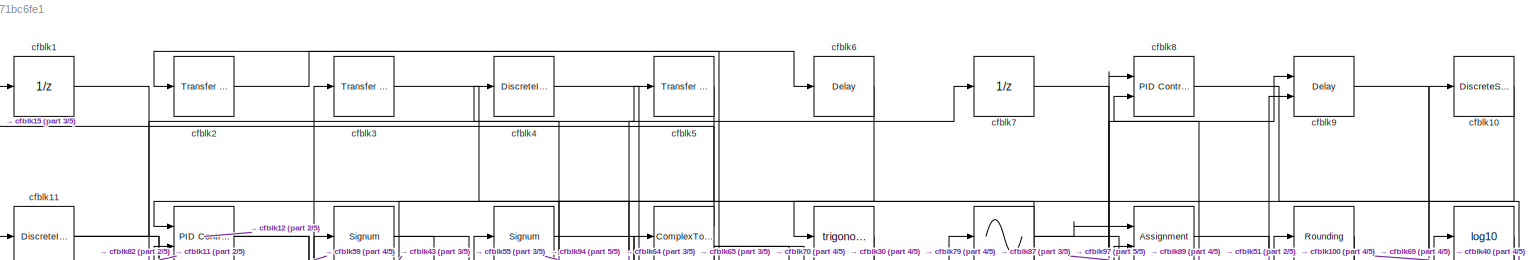
[diagram: root canvas - part 1/5, full width, top band]
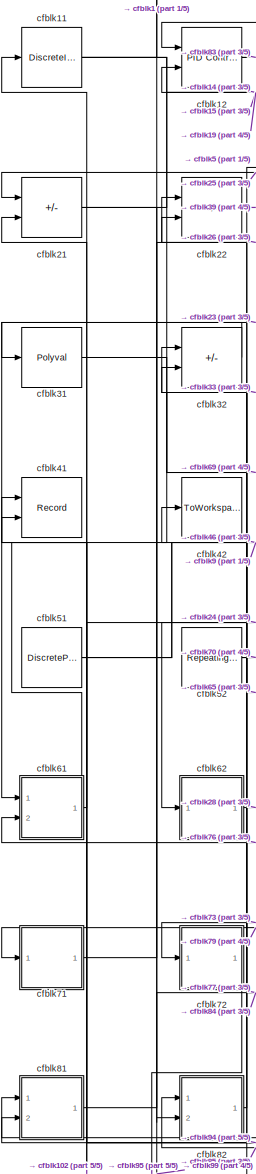
[diagram: root canvas - part 2/5, middle left region]
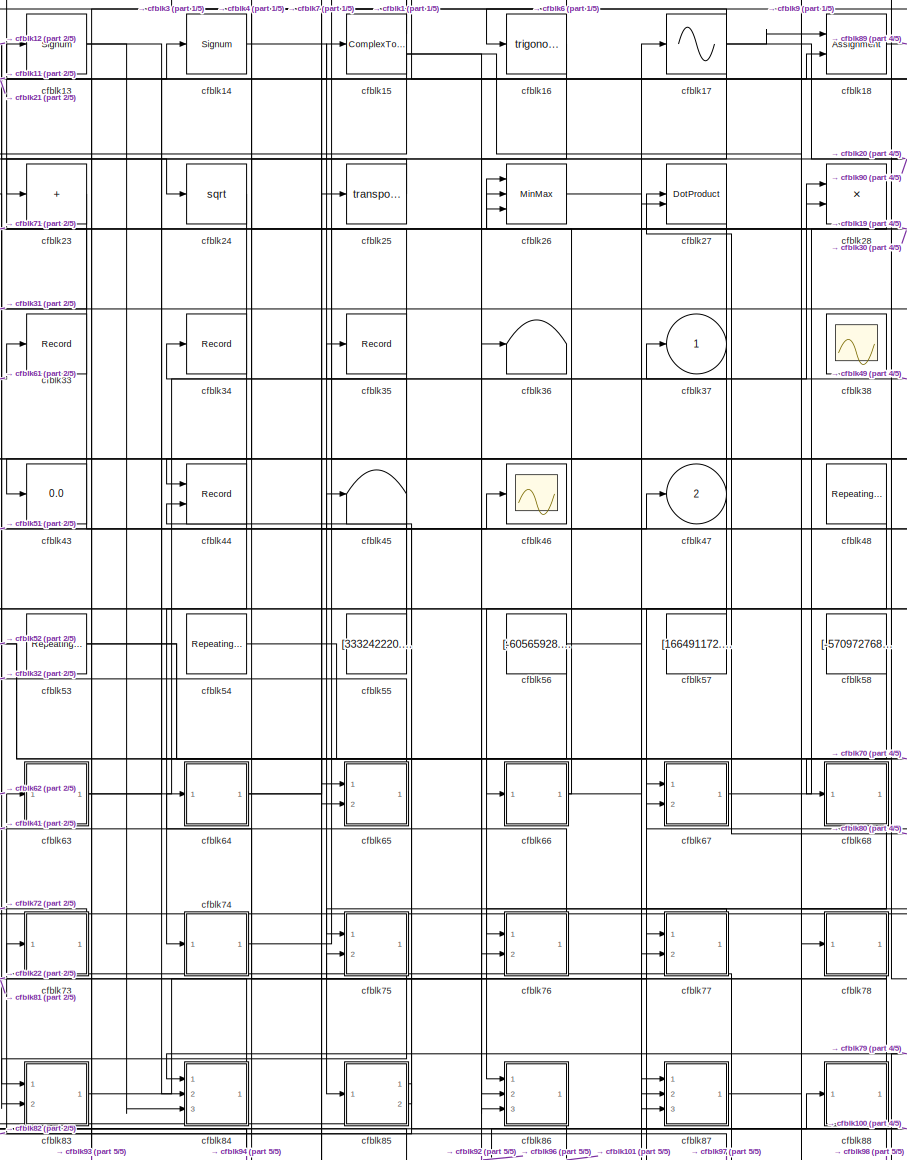
[diagram: root canvas - part 3/5, central region]
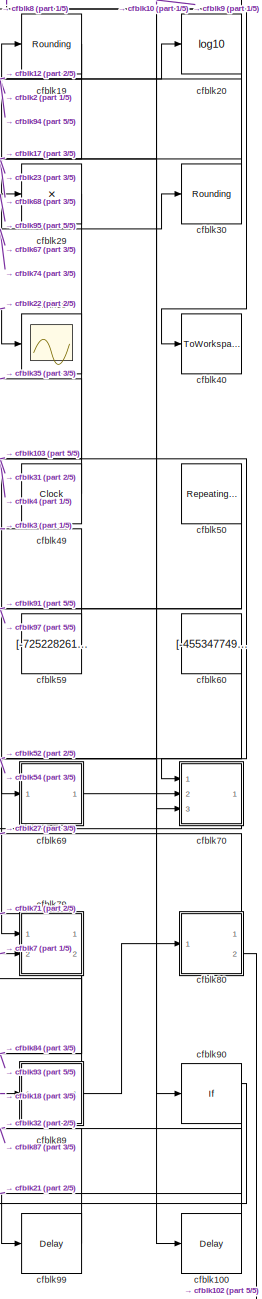
[diagram: root canvas - part 4/5, right side, full height]
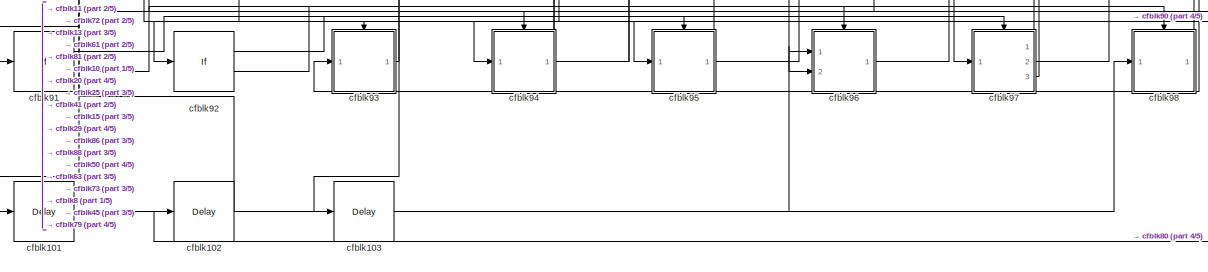
[diagram: root canvas - part 5/5, full width, bottom band]
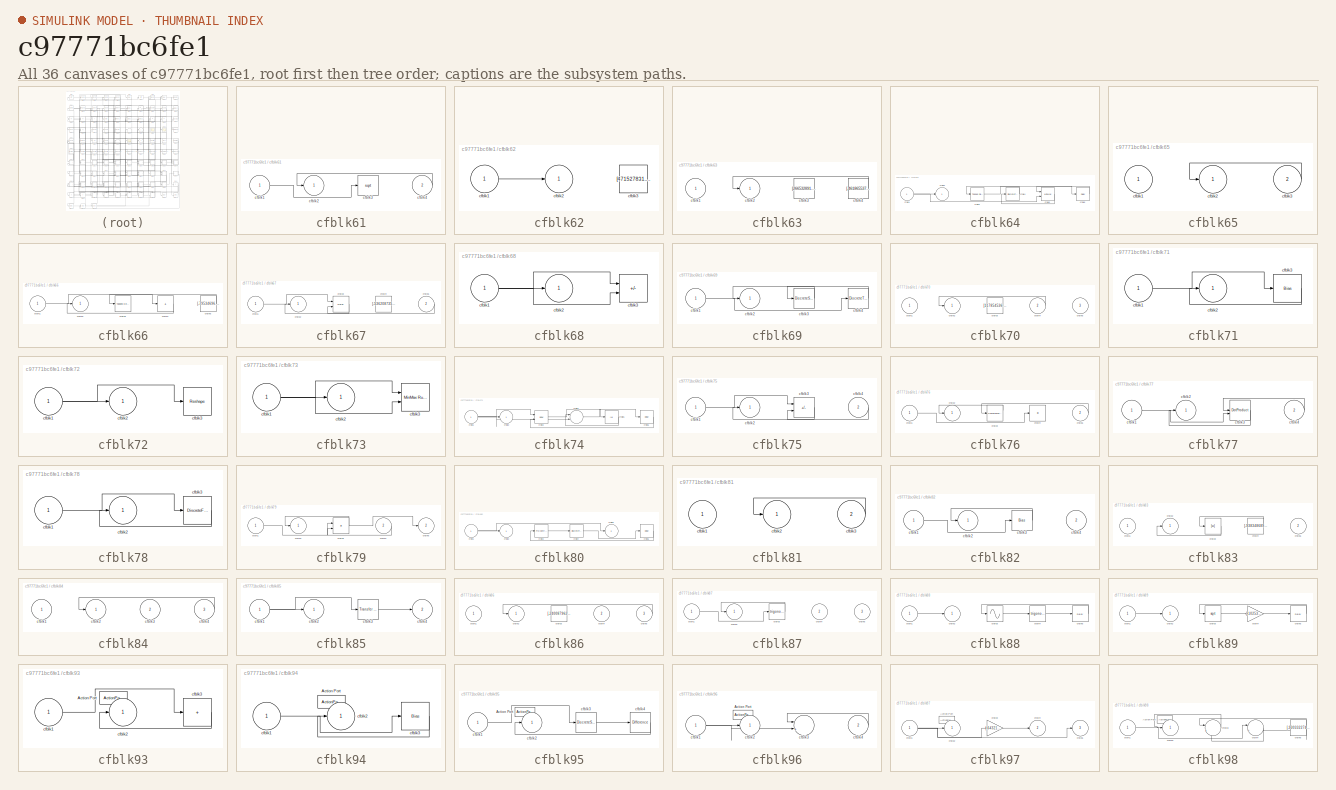
[diagram: thumbnail index - all 36 canvases of the model, root first then tree order]
MODEL slx_c97771bc6fe1
KIND model
CONFIG AbsTol = auto
CONFIG EnableMultiTasking = off
CONFIG FixedStep = auto
CONFIG MaxStep = auto
CONFIG MinStep = auto
CONFIG RelTol = 1e-3
CONFIG SampleTimeConstraint = Unconstrained
CONFIG SolverName = VariableStepAuto
CONFIG StartTime = 0.0
CONFIG StopTime = 10.0
BLOCK [UnitDelay] cfblk1
  HasFrameUpgradeWarning = on
BLOCK [DiscreteStateSpace] cfblk10
BLOCK [Delay] cfblk100
  InputPortMap = u0
  Ports = [1, 1]
  SampleTime = 1
BLOCK [Delay] cfblk101
  InputPortMap = u0
  Ports = [1, 1]
  SampleTime = 1
BLOCK [Delay] cfblk102
  InputPortMap = u0
  Ports = [1, 1]
  SampleTime = 1
BLOCK [Delay] cfblk103
  InputPortMap = u0
  Ports = [1, 1]
  SampleTime = 1
BLOCK [DiscreteIntegrator] cfblk11
  ICPrevOutput = DiscIntNeverNeededParam
  ICPrevScaledInput = DiscIntNeverNeededParam
  InitialConditionSetting = Auto
  Ports = [1, 1]
BLOCK [Reference] cfblk12  REF=slpidlib/PID Controller (2DOF)
  Ports = [2, 1]
  SourceBlock = slpidlib/PID Controller (2DOF)
  SourceProductBaseCode = SL
  SourceType = PID 2dof
BLOCK [Signum] cfblk13
BLOCK [Signum] cfblk14
BLOCK [ComplexToMagnitudeAngle] cfblk15
  Ports = [1, 2]
BLOCK [Trigonometry] cfblk16
  Ports = [1, 1]
BLOCK [Sin] cfblk17
  Ports = [1, 1]
  SampleTime = 0
  TimeSource = Use external signal
BLOCK [Assignment] cfblk18
  DiagnosticForDimensions = Warning
  IndexOptions = Index vector (dialog)
  Indices = 1
  OutputSizes = 1
  Ports = [2, 1]
BLOCK [Rounding] cfblk19
BLOCK [Reference] cfblk2  REF=simulink/Discrete/Transfer Fcn
Lead or Lag
  Ports = [1, 1]
  SourceBlock = simulink/Discrete/Transfer Fcn\nLead or Lag
  SourceProductBaseCode = SL
  SourceType = Lead or Lag Compensator
BLOCK [Math] cfblk20
  Operator = log10
  Ports = [1, 1]
BLOCK [Sum] cfblk21
  IconShape = rectangular
  Inputs = +-
  Ports = [2, 1]
BLOCK [Sum] cfblk22
  IconShape = rectangular
  Inputs = +-
  Ports = [2, 1]
BLOCK [Sum] cfblk23
  IconShape = rectangular
  Inputs = +
  Ports = [1, 1]
BLOCK [Sqrt] cfblk24
BLOCK [Math] cfblk25
  Operator = transpose
  Ports = [1, 1]
BLOCK [MinMax] cfblk26
  Function = max
  Inputs = 3
  Ports = [3, 1]
BLOCK [DotProduct] cfblk27
  OutDataTypeStr = Inherit: Inherit via internal rule
BLOCK [Product] cfblk28
  Ports = [2, 1]
BLOCK [Product] cfblk29
  Inputs = *
  Ports = [1, 1]
BLOCK [Reference] cfblk3  REF=simulink/Discrete/Transfer Fcn
First Order
  Ports = [1, 1]
  SourceBlock = simulink/Discrete/Transfer Fcn\nFirst Order
  SourceProductBaseCode = SL
  SourceType = First Order Transfer Fcn
BLOCK [Rounding] cfblk30
BLOCK [Polyval] cfblk31
  Coefs = [ +2.081618890e-019, -1.441693666e-014, +4.719686976e-010, -8.536869453e-006, +1.621573104e-001, -8.087801117e+001 ]
BLOCK [Sum] cfblk32
  IconShape = rectangular
  Inputs = +-
  Ports = [2, 1]
BLOCK [Record] cfblk33
  FileSettingsInternal = {"entries":[{"content":{"excelSettings":{"content":{},"type":"Streamout.ExcelSettings"}},"type":"Streamout.FileSettingStorage","uuid":"3282f54a-cc87-4849-ac33-639abf907f72"}],"packageUris":["http://schema.mathworks.com/mf0/streamout_blocks/R2020a"],"version":"1.0"}
  Ports = [1]
  SignalsInternal = {"entries":[{"content":{"signals":[{"content":{"blockPath":["sampleModel244/cfblk33"],"channel":[],"dimensions":[1],"domain":"sampleModel244/cfblk33","lineColor":"#139fff","plots":[1],"port":1,"sid":[""],"signalID":9772,"signalName":"cfblk61"},"type":"RecordBlkView.Signal","uuid":"cde80ae1-0f0e-4127-a5a1-a608f97d3de1"}]},"type":"RecordBlkView.InputSignals","uuid":"f8d19e68-2bc8-454d-ba24-e771bdc0d...<+97ch>
  VisualizationBindings = {"sparklinesplugin":{"info":[{"bindingParametersList":[],"subplotID":1}]}}
BLOCK [Record] cfblk34
  FileSettingsInternal = {"entries":[{"content":{"excelSettings":{"content":{},"type":"Streamout.ExcelSettings"}},"type":"Streamout.FileSettingStorage","uuid":"1bc6323d-6913-452f-8d92-e743385c7954"}],"packageUris":["http://schema.mathworks.com/mf0/streamout_blocks/R2020a"],"version":"1.0"}
  Ports = [1]
  SignalsInternal = {"entries":[{"content":{"signals":[{"content":{"blockPath":["sampleModel244/cfblk34"],"channel":[],"dimensions":[1],"domain":"sampleModel244/cfblk34","lineColor":"#fe330a","plots":[1],"port":1,"sid":[""],"signalID":9792,"signalName":"cfblk55"},"type":"RecordBlkView.Signal","uuid":"2fd89c6a-0567-430f-a438-ed56d00d60f2"}]},"type":"RecordBlkView.InputSignals","uuid":"daec545a-da82-4114-a5f9-601cc645d...<+97ch>
  VisualizationBindings = {"sparklinesplugin":{"info":[{"bindingParametersList":[],"subplotID":1}]}}
BLOCK [Record] cfblk35
  FileSettingsInternal = {"entries":[{"content":{"excelSettings":{"content":{},"type":"Streamout.ExcelSettings"}},"type":"Streamout.FileSettingStorage","uuid":"d44ad37f-a161-4993-b71a-48dc8168da26"}],"packageUris":["http://schema.mathworks.com/mf0/streamout_blocks/R2020a"],"version":"1.0"}
  Ports = [1]
  SignalsInternal = {"entries":[{"content":{"signals":[{"content":{"blockPath":["sampleModel244/cfblk35"],"channel":[],"dimensions":[1],"domain":"sampleModel244/cfblk35","lineColor":"#22b573","plots":[1],"port":1,"sid":[""],"signalID":9796,"signalName":"cfblk49"},"type":"RecordBlkView.Signal","uuid":"f63b9365-5ab6-4a57-a3c5-5ba42ee07859"}]},"type":"RecordBlkView.InputSignals","uuid":"8d4ba322-4ce7-4960-87db-79ef0bd08...<+97ch>
  VisualizationBindings = {"sparklinesplugin":{"info":[{"bindingParametersList":[],"subplotID":1}]}}
BLOCK [Terminator] cfblk36
BLOCK [Outport] cfblk37
BLOCK [Scope] cfblk38
  Floating = on
  NumInputPorts = 1
  Ports = []
BLOCK [Scope] cfblk39
  Floating = off
  NumInputPorts = 1
  Ports = [1]
BLOCK [DiscreteIntegrator] cfblk4
  ICPrevOutput = DiscIntNeverNeededParam
  ICPrevScaledInput = DiscIntNeverNeededParam
  InitialConditionSetting = Auto
  Ports = [1, 1]
BLOCK [ToWorkspace] cfblk40
  FixptAsFi = on
  MaxDataPoints = inf
  Ports = [1]
  SampleTime = -1
  SaveFormat = Timeseries
  VariableName = jybwncc
BLOCK [Record] cfblk41
  CompatibilityTag = XY
  FileSettingsInternal = {"entries":[{"content":{"excelSettings":{"content":{},"type":"Streamout.ExcelSettings"}},"type":"Streamout.FileSettingStorage","uuid":"2a096b76-41e0-4fc9-b8e7-cead69cfeab4"}],"packageUris":["http://schema.mathworks.com/mf0/streamout_blocks/R2020a"],"version":"1.0"}
  Layout = [1 1]
  Ports = [2]
  SignalsInternal = {"entries":[{"content":{"signals":[{"content":{"blockPath":["sampleModel244/cfblk41"],"channel":[],"dimensions":[1],"domain":"sampleModel244/cfblk41","lineColor":"#a2142f","plots":[1],"port":1,"sid":[""],"signalID":9776,"signalName":"cfblk76"},"type":"RecordBlkView.Signal","uuid":"448cb670-8667-4582-b93f-e7d89f4c353b"},{"content":{"blockPath":["sampleModel244/cfblk41"],"channel":[],"dimensions":[1...<+383ch>
  VisualizationBindings = {"xyplotplugin":{"info":[{"series":[{"bindingParametersList":[{"parameter":"X-Axis","signalID":9776,"signalName":"cfblk76"},{"parameter":"Y-Axis","signalID":9780,"signalName":"cfblk95"}],"seriesID":58913}],"subplotID":1}]}}
BLOCK [ToWorkspace] cfblk42
  FixptAsFi = on
  MaxDataPoints = inf
  Ports = [1]
  SampleTime = -1
  SaveFormat = Timeseries
  VariableName = lezveif
BLOCK [Display] cfblk43
  Decimation = 1
  Ports = [1]
BLOCK [Record] cfblk44
  CompatibilityTag = XY
  FileSettingsInternal = {"entries":[{"content":{"excelSettings":{"content":{},"type":"Streamout.ExcelSettings"}},"type":"Streamout.FileSettingStorage","uuid":"67c1ab0d-b2bc-48ee-9bb9-5083cd67cfb9"}],"packageUris":["http://schema.mathworks.com/mf0/streamout_blocks/R2020a"],"version":"1.0"}
  Layout = [1 1]
  Ports = [2]
  SignalsInternal = {"entries":[{"content":{"signals":[{"content":{"blockPath":["sampleModel244/cfblk44"],"channel":[],"dimensions":[1],"domain":"sampleModel244/cfblk44","lineColor":"#a2142f","plots":[1],"port":1,"sid":[""],"signalID":9784,"signalName":"cfblk16"},"type":"RecordBlkView.Signal","uuid":"b927b068-dea9-4670-ad21-d052ed595eca"},{"content":{"blockPath":["sampleModel244/cfblk44"],"channel":[],"dimensions":[1...<+385ch>
  VisualizationBindings = {"xyplotplugin":{"info":[{"series":[{"bindingParametersList":[{"parameter":"X-Axis","signalID":9784,"signalName":"cfblk16"},{"parameter":"Y-Axis","signalID":9788,"signalName":"cfblk85:2"}],"seriesID":22887}],"subplotID":1}]}}
BLOCK [Terminator] cfblk45
BLOCK [Scope] cfblk46
  Floating = off
  NumInputPorts = 1
  Ports = [1]
BLOCK [Outport] cfblk47
  Port = 2
BLOCK [Reference] cfblk48  REF=simulink/Sources/Repeating
Sequence
  Ports = [0, 1]
  SourceBlock = simulink/Sources/Repeating\nSequence
  SourceProductBaseCode = SL
  SourceType = Repeating table
BLOCK [Clock] cfblk49
BLOCK [Reference] cfblk5  REF=simulink/Discrete/Transfer Fcn
First Order
  Ports = [1, 1]
  SourceBlock = simulink/Discrete/Transfer Fcn\nFirst Order
  SourceProductBaseCode = SL
  SourceType = First Order Transfer Fcn
BLOCK [Reference] cfblk50  REF=simulink/Sources/Repeating
Sequence
  Ports = [0, 1]
  SourceBlock = simulink/Sources/Repeating\nSequence
  SourceProductBaseCode = SL
  SourceType = Repeating table
BLOCK [DiscretePulseGenerator] cfblk51
  Amplitude = [-2375380.359104]
  Period = [17929664.950864]
  PhaseDelay = [3.000000]
  Ports = [0, 1]
  PulseType = Time based
  PulseWidth = 5
BLOCK [Reference] cfblk52  REF=simulink/Sources/Repeating
Sequence
  Ports = [0, 1]
  SourceBlock = simulink/Sources/Repeating\nSequence
  SourceProductBaseCode = SL
  SourceType = Repeating table
BLOCK [Reference] cfblk53  REF=simulink/Sources/Repeating
Sequence
  Ports = [0, 1]
  SourceBlock = simulink/Sources/Repeating\nSequence
  SourceProductBaseCode = SL
  SourceType = Repeating table
BLOCK [Reference] cfblk54  REF=simulink/Sources/Repeating
Sequence
  Ports = [0, 1]
  SourceBlock = simulink/Sources/Repeating\nSequence
  SourceProductBaseCode = SL
  SourceType = Repeating table
BLOCK [Constant] cfblk55
  SampleTime = 1
  Value = [333242220.188075]
BLOCK [Constant] cfblk56
  SampleTime = 1
  Value = [-60565928.405243]
BLOCK [Constant] cfblk57
  SampleTime = 1
  Value = [166491172.216448]
BLOCK [Constant] cfblk58
  SampleTime = 1
  Value = [-570972768.567772]
BLOCK [Constant] cfblk59
  SampleTime = 1
  Value = [-725228261.548333]
BLOCK [Delay] cfblk6
  InputPortMap = u0
  Ports = [1, 1]
  SampleTime = 1
BLOCK [Constant] cfblk60
  SampleTime = 1
  Value = [-455347749.136685]
BLOCK [SubSystem] cfblk61
  Ports = [2, 1]
  RequestExecContextInheritance = off
BLOCK [Inport] cfblk61/cfblk1
BLOCK [Outport] cfblk61/cfblk2
BLOCK [Sqrt] cfblk61/cfblk3
BLOCK [Inport] cfblk61/cfblk4
  Port = 2
BLOCK [SubSystem] cfblk62
  Ports = [1, 1]
  RequestExecContextInheritance = off
BLOCK [Inport] cfblk62/cfblk1
BLOCK [Outport] cfblk62/cfblk2
BLOCK [Constant] cfblk62/cfblk3
  SampleTime = 1
  Value = [471527831.339368]
BLOCK [SubSystem] cfblk63
  Ports = [1, 1]
  RequestExecContextInheritance = off
BLOCK [Inport] cfblk63/cfblk1
BLOCK [Outport] cfblk63/cfblk2
BLOCK [Constant] cfblk63/cfblk3
  SampleTime = 1
  Value = [266532891.050368]
BLOCK [Constant] cfblk63/cfblk4
  SampleTime = 1
  Value = [-461865537.627971]
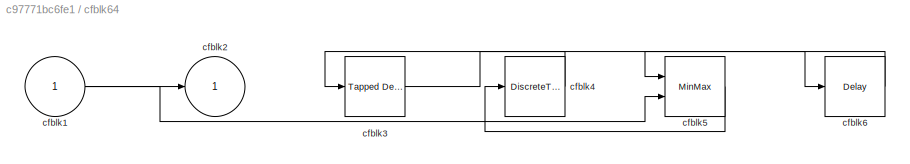
BLOCK [SubSystem] cfblk64
  Ports = [1, 1]
  RequestExecContextInheritance = off
BLOCK [Inport] cfblk64/cfblk1
BLOCK [Outport] cfblk64/cfblk2
BLOCK [Reference] cfblk64/cfblk3  REF=simulink/Discrete/Tapped Delay
  Ports = [1, 1]
  SourceBlock = simulink/Discrete/Tapped Delay
  SourceProductBaseCode = SL
  SourceType = Tapped Delay Line
BLOCK [DiscreteTransferFcn] cfblk64/cfblk4
  InputPortMap = u0
  Ports = [1, 1]
  SampleTime = 1
BLOCK [MinMax] cfblk64/cfblk5
  Function = max
  Inputs = 2
  Ports = [2, 1]
BLOCK [Delay] cfblk64/cfblk6
  InputPortMap = u0
  Ports = [1, 1]
  SampleTime = 1
BLOCK [SubSystem] cfblk65
  Ports = [2, 1]
  RequestExecContextInheritance = off
BLOCK [Inport] cfblk65/cfblk1
BLOCK [Outport] cfblk65/cfblk2
BLOCK [Inport] cfblk65/cfblk3
  Port = 2
BLOCK [SubSystem] cfblk66
  Ports = [1, 1]
  RequestExecContextInheritance = off
BLOCK [Inport] cfblk66/cfblk1
BLOCK [Outport] cfblk66/cfblk2
BLOCK [Reference] cfblk66/cfblk3  REF=simulink/Discrete/Tapped Delay
  Ports = [1, 1]
  SourceBlock = simulink/Discrete/Tapped Delay
  SourceProductBaseCode = SL
  SourceType = Tapped Delay Line
BLOCK [Sum] cfblk66/cfblk4
  IconShape = rectangular
  Inputs = +
  Ports = [1, 1]
BLOCK [Constant] cfblk66/cfblk5
  SampleTime = 1
  Value = [-79534696.073904]
BLOCK [SubSystem] cfblk67
  Ports = [2, 1]
  RequestExecContextInheritance = off
BLOCK [Inport] cfblk67/cfblk1
BLOCK [Outport] cfblk67/cfblk2
BLOCK [Delay] cfblk67/cfblk3
  DelayLengthSource = Input port
  InputPortMap = u0,p1
  Ports = [2, 1]
  SampleTime = 1
BLOCK [Constant] cfblk67/cfblk4
  SampleTime = 1
  Value = [-536208735.423329]
BLOCK [Inport] cfblk67/cfblk5
  Port = 2
BLOCK [SubSystem] cfblk68
  Ports = [1, 1]
  RequestExecContextInheritance = off
BLOCK [Inport] cfblk68/cfblk1
BLOCK [Outport] cfblk68/cfblk2
BLOCK [Sum] cfblk68/cfblk3
  IconShape = rectangular
  Inputs = +-
  Ports = [2, 1]
BLOCK [SubSystem] cfblk69
  Ports = [1, 1]
  RequestExecContextInheritance = off
BLOCK [Inport] cfblk69/cfblk1
BLOCK [Outport] cfblk69/cfblk2
BLOCK [DiscreteStateSpace] cfblk69/cfblk3
BLOCK [DiscreteTransferFcn] cfblk69/cfblk4
  InputPortMap = u0
  Ports = [1, 1]
  SampleTime = 1
BLOCK [UnitDelay] cfblk7
  HasFrameUpgradeWarning = on
BLOCK [SubSystem] cfblk70
  Ports = [3, 1]
  RequestExecContextInheritance = off
BLOCK [Inport] cfblk70/cfblk1
BLOCK [Outport] cfblk70/cfblk2
BLOCK [Constant] cfblk70/cfblk3
  SampleTime = 1
  Value = [117854536.668014]
BLOCK [Inport] cfblk70/cfblk4
  Port = 2
BLOCK [Inport] cfblk70/cfblk5
  Port = 3
BLOCK [SubSystem] cfblk71
  Ports = [1, 1]
  RequestExecContextInheritance = off
BLOCK [Inport] cfblk71/cfblk1
BLOCK [Outport] cfblk71/cfblk2
BLOCK [Bias] cfblk71/cfblk3
  Bias = [712286684.811719]
  SaturateOnIntegerOverflow = off
BLOCK [SubSystem] cfblk72
  Ports = [1, 1]
  RequestExecContextInheritance = off
BLOCK [Inport] cfblk72/cfblk1
BLOCK [Outport] cfblk72/cfblk2
BLOCK [Reshape] cfblk72/cfblk3
  Ports = [1, 1]
BLOCK [SubSystem] cfblk73
  Ports = [1, 1]
  RequestExecContextInheritance = off
BLOCK [Inport] cfblk73/cfblk1
BLOCK [Outport] cfblk73/cfblk2
BLOCK [Reference] cfblk73/cfblk3  REF=simulink/Math
Operations/MinMax
Running
Resettable
  Ports = [2, 1]
  SourceBlock = simulink/Math\nOperations/MinMax\nRunning\nResettable
  SourceProductBaseCode = SL
  SourceType = MinMax Running Resettable
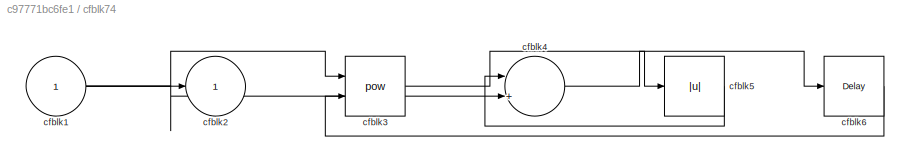
BLOCK [SubSystem] cfblk74
  Ports = [1, 1]
  RequestExecContextInheritance = off
BLOCK [Inport] cfblk74/cfblk1
BLOCK [Outport] cfblk74/cfblk2
BLOCK [Math] cfblk74/cfblk3
  Operator = pow
  Ports = [2, 1]
BLOCK [Sum] cfblk74/cfblk4
  Inputs = |++
  Ports = [2, 1]
BLOCK [Abs] cfblk74/cfblk5
  SaturateOnIntegerOverflow = off
BLOCK [Delay] cfblk74/cfblk6
  InputPortMap = u0
  Ports = [1, 1]
  SampleTime = 1
BLOCK [SubSystem] cfblk75
  Ports = [2, 1]
  RequestExecContextInheritance = off
BLOCK [Inport] cfblk75/cfblk1
BLOCK [Outport] cfblk75/cfblk2
BLOCK [Sum] cfblk75/cfblk3
  IconShape = rectangular
  Inputs = +-
  Ports = [2, 1]
BLOCK [Inport] cfblk75/cfblk4
  Port = 2
BLOCK [SubSystem] cfblk76
  Ports = [2, 1]
  RequestExecContextInheritance = off
BLOCK [Inport] cfblk76/cfblk1
BLOCK [Outport] cfblk76/cfblk2
BLOCK [ComplexToRealImag] cfblk76/cfblk3
  Ports = [1, 2]
BLOCK [Product] cfblk76/cfblk4
  Inputs = *
  Ports = [1, 1]
BLOCK [Inport] cfblk76/cfblk5
  Port = 2
BLOCK [SubSystem] cfblk77
  Ports = [2, 1]
  RequestExecContextInheritance = off
BLOCK [Inport] cfblk77/cfblk1
BLOCK [Outport] cfblk77/cfblk2
BLOCK [DotProduct] cfblk77/cfblk3
  OutDataTypeStr = Inherit: Inherit via internal rule
BLOCK [Inport] cfblk77/cfblk4
  Port = 2
BLOCK [SubSystem] cfblk78
  Ports = [1, 1]
  RequestExecContextInheritance = off
BLOCK [Inport] cfblk78/cfblk1
BLOCK [Outport] cfblk78/cfblk2
BLOCK [DiscreteFir] cfblk78/cfblk3
  InputPortMap = u0
  OutputPortMap = o0
  Ports = [1, 1]
  SampleTime = 1
BLOCK [SubSystem] cfblk79
  Ports = [2, 2]
  RequestExecContextInheritance = off
BLOCK [Inport] cfblk79/cfblk1
BLOCK [Outport] cfblk79/cfblk2
BLOCK [Product] cfblk79/cfblk3
  Ports = [2, 1]
BLOCK [Inport] cfblk79/cfblk4
  Port = 2
BLOCK [Outport] cfblk79/cfblk5
  Port = 2
BLOCK [Reference] cfblk8  REF=slpidlib/PID Controller (2DOF)
  Ports = [2, 1]
  SourceBlock = slpidlib/PID Controller (2DOF)
  SourceProductBaseCode = SL
  SourceType = PID 2dof
BLOCK [SubSystem] cfblk80
  Ports = [1, 2]
  RequestExecContextInheritance = off
BLOCK [Inport] cfblk80/cfblk1
BLOCK [Outport] cfblk80/cfblk2
BLOCK [Reference] cfblk80/cfblk3  REF=slpidlib/PID Controller
  Ports = [1, 1]
  SourceBlock = slpidlib/PID Controller
  SourceProductBaseCode = SL
  SourceType = PID 1dof
BLOCK [DiscreteTransferFcn] cfblk80/cfblk4
  InputPortMap = u0
  Ports = [1, 1]
  SampleTime = 1
BLOCK [Outport] cfblk80/cfblk5
  Port = 2
BLOCK [Delay] cfblk80/cfblk6
  InputPortMap = u0
  Ports = [1, 1]
  SampleTime = 1
BLOCK [SubSystem] cfblk81
  Ports = [2, 1]
  RequestExecContextInheritance = off
BLOCK [Inport] cfblk81/cfblk1
BLOCK [Outport] cfblk81/cfblk2
BLOCK [Inport] cfblk81/cfblk3
  Port = 2
BLOCK [SubSystem] cfblk82
  Ports = [2, 1]
  RequestExecContextInheritance = off
BLOCK [Inport] cfblk82/cfblk1
BLOCK [Outport] cfblk82/cfblk2
BLOCK [Bias] cfblk82/cfblk3
  Bias = [71432375.219163]
  SaturateOnIntegerOverflow = off
BLOCK [Inport] cfblk82/cfblk4
  Port = 2
BLOCK [SubSystem] cfblk83
  Ports = [2, 1]
  RequestExecContextInheritance = off
BLOCK [Inport] cfblk83/cfblk1
BLOCK [Outport] cfblk83/cfblk2
BLOCK [Abs] cfblk83/cfblk3
  SaturateOnIntegerOverflow = off
BLOCK [Constant] cfblk83/cfblk4
  SampleTime = 1
  Value = [-938348689.067085]
BLOCK [Inport] cfblk83/cfblk5
  Port = 2
BLOCK [SubSystem] cfblk84
  Ports = [3, 1]
  RequestExecContextInheritance = off
BLOCK [Inport] cfblk84/cfblk1
BLOCK [Outport] cfblk84/cfblk2
BLOCK [Inport] cfblk84/cfblk3
  Port = 2
BLOCK [Inport] cfblk84/cfblk4
  Port = 3
BLOCK [SubSystem] cfblk85
  Ports = [1, 2]
  RequestExecContextInheritance = off
BLOCK [Inport] cfblk85/cfblk1
BLOCK [Outport] cfblk85/cfblk2
BLOCK [Reference] cfblk85/cfblk3  REF=simulink/Discrete/Transfer Fcn
Lead or Lag
  Ports = [1, 1]
  SourceBlock = simulink/Discrete/Transfer Fcn\nLead or Lag
  SourceProductBaseCode = SL
  SourceType = Lead or Lag Compensator
BLOCK [Outport] cfblk85/cfblk4
  Port = 2
BLOCK [SubSystem] cfblk86
  Ports = [3, 1]
  RequestExecContextInheritance = off
BLOCK [Inport] cfblk86/cfblk1
BLOCK [Outport] cfblk86/cfblk2
BLOCK [Constant] cfblk86/cfblk3
  SampleTime = 1
  Value = [-240087962.426565]
BLOCK [Inport] cfblk86/cfblk4
  Port = 2
BLOCK [Inport] cfblk86/cfblk5
  Port = 3
BLOCK [SubSystem] cfblk87
  Ports = [3, 1]
  RequestExecContextInheritance = off
BLOCK [Inport] cfblk87/cfblk1
BLOCK [Outport] cfblk87/cfblk2
BLOCK [Trigonometry] cfblk87/cfblk3
  Ports = [1, 1]
BLOCK [Inport] cfblk87/cfblk4
  Port = 2
BLOCK [Inport] cfblk87/cfblk5
  Port = 3
BLOCK [SubSystem] cfblk88
  Ports = [1, 1]
  RequestExecContextInheritance = off
BLOCK [Inport] cfblk88/cfblk1
BLOCK [Outport] cfblk88/cfblk2
BLOCK [Sin] cfblk88/cfblk3
  Ports = [1, 1]
  SampleTime = 0
  TimeSource = Use external signal
BLOCK [Trigonometry] cfblk88/cfblk4
  Ports = [1, 1]
BLOCK [Delay] cfblk88/cfblk5
  InputPortMap = u0
  Ports = [1, 1]
  SampleTime = 1
BLOCK [SubSystem] cfblk89
  Ports = [1, 1]
  RequestExecContextInheritance = off
BLOCK [Inport] cfblk89/cfblk1
BLOCK [Outport] cfblk89/cfblk2
BLOCK [Sqrt] cfblk89/cfblk3
BLOCK [Gain] cfblk89/cfblk4
  Gain = [-102530974.269813]
BLOCK [Delay] cfblk89/cfblk5
  InputPortMap = u0
  Ports = [1, 1]
  SampleTime = 1
BLOCK [Delay] cfblk9
  DelayLengthSource = Input port
  InputPortMap = u0,p1
  Ports = [2, 1]
  SampleTime = 1
BLOCK [If] cfblk90
  IfExpression = u1 >= 0
  Ports = [1, 2]
  SampleTime = 1
BLOCK [If] cfblk91
  IfExpression = u1 >= 0
  Ports = [1, 2]
  SampleTime = 1
BLOCK [If] cfblk92
  IfExpression = u1 >= 0
  Ports = [1, 2]
  SampleTime = 1
BLOCK [SubSystem] cfblk93
  Ports = [1, 1, 0, 0, 0, 0, 0, 1]
  RequestExecContextInheritance = off
  TreatAsAtomicUnit = on
BLOCK [ActionPort] cfblk93/Action Port
  ActionPortLabel = if(u1 >= 0)
BLOCK [Inport] cfblk93/cfblk1
BLOCK [Outport] cfblk93/cfblk2
BLOCK [Sum] cfblk93/cfblk3
  IconShape = rectangular
  Inputs = +
  Ports = [1, 1]
BLOCK [SubSystem] cfblk94
  Ports = [1, 1, 0, 0, 0, 0, 0, 1]
  RequestExecContextInheritance = off
  TreatAsAtomicUnit = on
BLOCK [ActionPort] cfblk94/Action Port
  ActionPortLabel = else
BLOCK [Inport] cfblk94/cfblk1
BLOCK [Outport] cfblk94/cfblk2
BLOCK [Bias] cfblk94/cfblk3
  Bias = [993076824.552580]
  SaturateOnIntegerOverflow = off
BLOCK [SubSystem] cfblk95
  Ports = [1, 1, 0, 0, 0, 0, 0, 1]
  RequestExecContextInheritance = off
  TreatAsAtomicUnit = on
BLOCK [ActionPort] cfblk95/Action Port
  ActionPortLabel = if(u1 >= 0)
BLOCK [Inport] cfblk95/cfblk1
BLOCK [Outport] cfblk95/cfblk2
BLOCK [DiscreteStateSpace] cfblk95/cfblk3
  SampleTime = -1
BLOCK [Reference] cfblk95/cfblk4  REF=simulink/Discrete/Difference
  Ports = [1, 1]
  SourceBlock = simulink/Discrete/Difference
  SourceProductBaseCode = SL
  SourceType = Difference
BLOCK [SubSystem] cfblk96
  Ports = [2, 1, 0, 0, 0, 0, 0, 1]
  RequestExecContextInheritance = off
  TreatAsAtomicUnit = on
BLOCK [ActionPort] cfblk96/Action Port
  ActionPortLabel = else
BLOCK [Inport] cfblk96/cfblk1
BLOCK [Outport] cfblk96/cfblk2
BLOCK [Sum] cfblk96/cfblk3
  Inputs = |++
  Ports = [2, 1]
BLOCK [Inport] cfblk96/cfblk4
  Port = 2
BLOCK [SubSystem] cfblk97
  Ports = [1, 3, 0, 0, 0, 0, 0, 1]
  RequestExecContextInheritance = off
  TreatAsAtomicUnit = on
BLOCK [ActionPort] cfblk97/Action Port
  ActionPortLabel = if(u1 >= 0)
BLOCK [Inport] cfblk97/cfblk1
BLOCK [Outport] cfblk97/cfblk2
BLOCK [Gain] cfblk97/cfblk3
  Gain = [-643219633.785886]
BLOCK [Outport] cfblk97/cfblk4
  Port = 2
BLOCK [Outport] cfblk97/cfblk5
  Port = 3
BLOCK [SubSystem] cfblk98
  Ports = [1, 1, 0, 0, 0, 0, 0, 1]
  RequestExecContextInheritance = off
  TreatAsAtomicUnit = on
BLOCK [ActionPort] cfblk98/Action Port
  ActionPortLabel = else
BLOCK [Inport] cfblk98/cfblk1
BLOCK [Outport] cfblk98/cfblk2
BLOCK [Sum] cfblk98/cfblk3
  Inputs = |++
  Ports = [2, 1]
BLOCK [Sum] cfblk98/cfblk4
  Inputs = |++
  Ports = [2, 1]
BLOCK [Constant] cfblk98/cfblk5
  SampleTime = 1
  Value = [-930332274.403370]
BLOCK [Delay] cfblk99
  InputPortMap = u0
  Ports = [1, 1]
  SampleTime = 1
LINE cfblk100:1 -> cfblk87:1
LINE cfblk101:1 -> cfblk98:1
LINE cfblk102:1 -> cfblk11:1
LINE cfblk103:1 -> cfblk96:1
LINE cfblk10:1 -> cfblk94:1
NET cfblk11:1 -> cfblk15:1, cfblk5:1, cfblk77:2
NET cfblk12:1 -> cfblk24:1, cfblk83:1
NET cfblk13:1 -> cfblk65:2, cfblk84:3
LINE cfblk14:1 -> cfblk85:1
LINE cfblk15:1 -> cfblk1:1
NET cfblk15:2 -> cfblk78:1, cfblk92:1, cfblk96:2
LINE cfblk16:1 -> cfblk44:1
NET cfblk17:1 -> cfblk16:1, cfblk18:1, cfblk86:2, cfblk90:1
LINE cfblk18:1 -> cfblk89:1
NET cfblk19:1 -> cfblk12:2, cfblk23:1
LINE cfblk1:1 -> cfblk82:2
LINE cfblk20:1 -> cfblk68:1
NET cfblk21:1 -> cfblk14:1, cfblk99:1
LINE cfblk22:1 -> cfblk39:1
LINE cfblk23:1 -> cfblk31:1
LINE cfblk24:1 -> cfblk62:1
LINE cfblk25:1 -> cfblk21:1
LINE cfblk26:1 -> cfblk87:2
LINE cfblk27:1 -> cfblk86:1
NET cfblk28:1 -> cfblk22:2, cfblk26:2
LINE cfblk29:1 -> cfblk103:1
LINE cfblk2:1 -> cfblk6:1
LINE cfblk30:1 -> cfblk2:1
LINE cfblk31:1 -> cfblk69:1
LINE cfblk32:1 -> cfblk61:1
LINE cfblk3:1 -> cfblk65:1
LINE cfblk48:1 -> cfblk74:1
LINE cfblk49:1 -> cfblk35:1
LINE cfblk4:1 -> cfblk70:1
NET cfblk50:1 -> cfblk91:1, cfblk97:1
NET cfblk51:1 -> cfblk46:1, cfblk9:2
NET cfblk52:1 -> cfblk70:2, cfblk76:2
NET cfblk53:1 -> cfblk67:1, cfblk86:3
LINE cfblk54:1 -> cfblk70:3
NET cfblk55:1 -> cfblk34:1, cfblk4:1
NET cfblk56:1 -> cfblk27:2, cfblk84:2
LINE cfblk57:1 -> cfblk37:1
LINE cfblk58:1 -> cfblk66:1
LINE cfblk59:1 -> cfblk3:1
LINE cfblk5:1 -> cfblk12:1
LINE cfblk60:1 -> cfblk79:1
LINE cfblk61/cfblk1:1 -> cfblk61/cfblk3:1
LINE cfblk61/cfblk4:1 -> cfblk61/cfblk2:1
NET cfblk61:1 -> cfblk21:2, cfblk33:1
LINE cfblk62/cfblk1:1 -> cfblk62/cfblk2:1
LINE cfblk62:1 -> cfblk28:2
LINE cfblk63/cfblk4:1 -> cfblk63/cfblk2:1
NET cfblk63:1 -> cfblk18:2, cfblk28:1
NET cfblk64/cfblk1:1 -> cfblk64/cfblk2:1, cfblk64/cfblk5:2
LINE cfblk64/cfblk3:1 -> cfblk64/cfblk6:1
LINE cfblk64/cfblk4:1 -> cfblk64/cfblk3:1
LINE cfblk64/cfblk5:1 -> cfblk64/cfblk4:1
LINE cfblk64/cfblk6:1 -> cfblk64/cfblk5:1
NET cfblk64:1 -> cfblk47:1, cfblk7:1
LINE cfblk65/cfblk3:1 -> cfblk65/cfblk2:1
LINE cfblk65:1 -> cfblk32:1
LINE cfblk66/cfblk1:1 -> cfblk66/cfblk4:1
LINE cfblk66/cfblk4:1 -> cfblk66/cfblk2:1
LINE cfblk66/cfblk5:1 -> cfblk66/cfblk3:1
NET cfblk66:1 -> cfblk17:1, cfblk26:3
LINE cfblk67/cfblk1:1 -> cfblk67/cfblk3:1
LINE cfblk67/cfblk3:1 -> cfblk67/cfblk2:1
LINE cfblk67/cfblk5:1 -> cfblk67/cfblk3:2
LINE cfblk67:1 -> cfblk19:1
NET cfblk68/cfblk1:1 -> cfblk68/cfblk2:1, cfblk68/cfblk3:1, cfblk68/cfblk3:2
NET cfblk68:1 -> cfblk75:1, cfblk87:3
LINE cfblk69/cfblk1:1 -> cfblk69/cfblk4:1
LINE cfblk69/cfblk3:1 -> cfblk69/cfblk2:1
LINE cfblk69/cfblk4:1 -> cfblk69/cfblk3:1
LINE cfblk69:1 -> cfblk10:1
LINE cfblk6:1 -> cfblk43:1
LINE cfblk70/cfblk4:1 -> cfblk70/cfblk2:1
LINE cfblk70:1 -> cfblk67:2
LINE cfblk71/cfblk1:1 -> cfblk71/cfblk3:1
LINE cfblk71/cfblk3:1 -> cfblk71/cfblk2:1
LINE cfblk71:1 -> cfblk26:1
NET cfblk72/cfblk1:1 -> cfblk72/cfblk2:1, cfblk72/cfblk3:1
LINE cfblk72:1 -> cfblk95:1
NET cfblk73/cfblk1:1 -> cfblk73/cfblk2:1, cfblk73/cfblk3:1, cfblk73/cfblk3:2
LINE cfblk73:1 -> cfblk72:1
NET cfblk74/cfblk1:1 -> cfblk74/cfblk2:1, cfblk74/cfblk3:1, cfblk74/cfblk4:2
LINE cfblk74/cfblk3:1 -> cfblk74/cfblk5:1
LINE cfblk74/cfblk4:1 -> cfblk74/cfblk6:1
LINE cfblk74/cfblk5:1 -> cfblk74/cfblk4:1
LINE cfblk74/cfblk6:1 -> cfblk74/cfblk3:2
LINE cfblk74:1 -> cfblk30:1
LINE cfblk75/cfblk1:1 -> cfblk75/cfblk3:1
LINE cfblk75/cfblk3:1 -> cfblk75/cfblk2:1
LINE cfblk75/cfblk4:1 -> cfblk75/cfblk3:2
LINE cfblk75:1 -> cfblk83:2
LINE cfblk76/cfblk1:1 -> cfblk76/cfblk4:1
LINE cfblk76/cfblk3:1 -> cfblk76/cfblk2:1
LINE cfblk76/cfblk5:1 -> cfblk76/cfblk3:1
LINE cfblk76:1 -> cfblk41:1
LINE cfblk77/cfblk1:1 -> cfblk77/cfblk3:2
LINE cfblk77/cfblk3:1 -> cfblk77/cfblk2:1
LINE cfblk77/cfblk4:1 -> cfblk77/cfblk3:1
LINE cfblk77:1 -> cfblk76:1
LINE cfblk78/cfblk1:1 -> cfblk78/cfblk3:1
LINE cfblk78/cfblk3:1 -> cfblk78/cfblk2:1
LINE cfblk78:1 -> cfblk75:2
LINE cfblk79/cfblk1:1 -> cfblk79/cfblk3:1
NET cfblk79/cfblk3:1 -> cfblk79/cfblk2:1, cfblk79/cfblk5:1
LINE cfblk79/cfblk4:1 -> cfblk79/cfblk3:2
LINE cfblk79:1 -> cfblk71:1
NET cfblk79:2 -> cfblk84:1, cfblk93:1
LINE cfblk7:1 -> cfblk79:2
NET cfblk80/cfblk1:1 -> cfblk80/cfblk2:1, cfblk80/cfblk5:1
LINE cfblk80/cfblk3:1 -> cfblk80/cfblk4:1
LINE cfblk80/cfblk4:1 -> cfblk80/cfblk6:1
LINE cfblk80/cfblk6:1 -> cfblk80/cfblk3:1
LINE cfblk80:1 -> cfblk27:1
LINE cfblk80:2 -> cfblk102:1
LINE cfblk81/cfblk3:1 -> cfblk81/cfblk2:1
LINE cfblk81:1 -> cfblk77:1
LINE cfblk82/cfblk1:1 -> cfblk82/cfblk3:1
LINE cfblk82/cfblk3:1 -> cfblk82/cfblk2:1
LINE cfblk82:1 -> cfblk42:1
LINE cfblk83/cfblk3:1 -> cfblk83/cfblk2:1
LINE cfblk83/cfblk4:1 -> cfblk83/cfblk3:1
LINE cfblk83:1 -> cfblk36:1
LINE cfblk84/cfblk4:1 -> cfblk84/cfblk2:1
LINE cfblk84:1 -> cfblk22:1
NET cfblk85/cfblk1:1 -> cfblk85/cfblk2:1, cfblk85/cfblk3:1
LINE cfblk85/cfblk3:1 -> cfblk85/cfblk4:1
LINE cfblk85:1 -> cfblk82:1
NET cfblk85:2 -> cfblk44:2, cfblk81:1
LINE cfblk86/cfblk5:1 -> cfblk86/cfblk2:1
LINE cfblk86:1 -> cfblk101:1
LINE cfblk87/cfblk1:1 -> cfblk87/cfblk3:1
LINE cfblk87/cfblk3:1 -> cfblk87/cfblk2:1
LINE cfblk87:1 -> cfblk9:1
LINE cfblk88/cfblk1:1 -> cfblk88/cfblk2:1
LINE cfblk88/cfblk3:1 -> cfblk88/cfblk4:1
LINE cfblk88/cfblk4:1 -> cfblk88/cfblk5:1
LINE cfblk88/cfblk5:1 -> cfblk88/cfblk3:1
LINE cfblk88:1 -> cfblk64:1
LINE cfblk89/cfblk1:1 -> cfblk89/cfblk2:1
LINE cfblk89/cfblk3:1 -> cfblk89/cfblk4:1
LINE cfblk89/cfblk4:1 -> cfblk89/cfblk5:1
LINE cfblk89/cfblk5:1 -> cfblk89/cfblk3:1
NET cfblk89:1 -> cfblk80:1, cfblk8:2
LINE cfblk8:1 -> cfblk40:1
LINE cfblk90:1 -> cfblk93:ifaction
LINE cfblk90:2 -> cfblk94:ifaction
LINE cfblk91:1 -> cfblk95:ifaction
LINE cfblk91:2 -> cfblk96:ifaction
LINE cfblk92:1 -> cfblk97:ifaction
LINE cfblk92:2 -> cfblk98:ifaction
LINE cfblk93/cfblk1:1 -> cfblk93/cfblk3:1
LINE cfblk93/cfblk3:1 -> cfblk93/cfblk2:1
LINE cfblk93:1 -> cfblk13:1
LINE cfblk94/cfblk1:1 -> cfblk94/cfblk3:1
LINE cfblk94/cfblk3:1 -> cfblk94/cfblk2:1
NET cfblk94:1 -> cfblk20:1, cfblk25:1, cfblk61:2, cfblk81:2
LINE cfblk95/cfblk1:1 -> cfblk95/cfblk3:1
LINE cfblk95/cfblk3:1 -> cfblk95/cfblk4:1
LINE cfblk95/cfblk4:1 -> cfblk95/cfblk2:1
NET cfblk95:1 -> cfblk29:1, cfblk41:2
NET cfblk96/cfblk1:1 -> cfblk96/cfblk2:1, cfblk96/cfblk3:2
LINE cfblk96/cfblk4:1 -> cfblk96/cfblk3:1
LINE cfblk96:1 -> cfblk88:1
NET cfblk97/cfblk1:1 -> cfblk97/cfblk2:1, cfblk97/cfblk3:1, cfblk97/cfblk5:1
LINE cfblk97/cfblk3:1 -> cfblk97/cfblk4:1
LINE cfblk97:1 -> cfblk63:1
LINE cfblk97:2 -> cfblk8:1
LINE cfblk97:3 -> cfblk73:1
LINE cfblk98/cfblk1:1 -> cfblk98/cfblk4:1
LINE cfblk98/cfblk3:1 -> cfblk98/cfblk2:1
LINE cfblk98/cfblk4:1 -> cfblk98/cfblk3:2
NET cfblk98/cfblk5:1 -> cfblk98/cfblk3:1, cfblk98/cfblk4:2
LINE cfblk98:1 -> cfblk45:1
LINE cfblk99:1 -> cfblk32:2
LINE cfblk9:1 -> cfblk100:1
note: NET lines group one-source signal fan-out (src -> all destinations, sorted); 1:1 wires keep LINE
